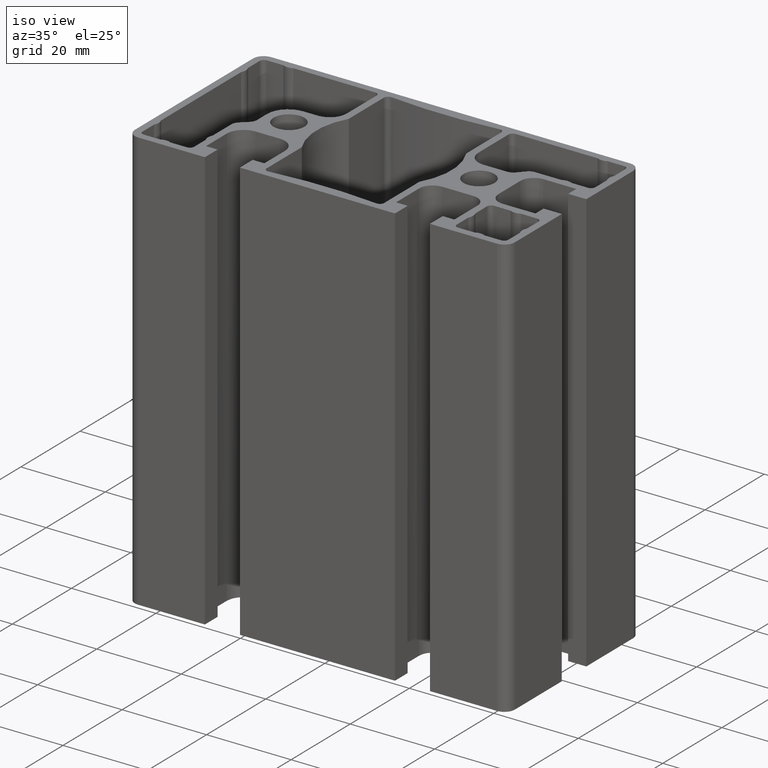
[diagram: clean part render]
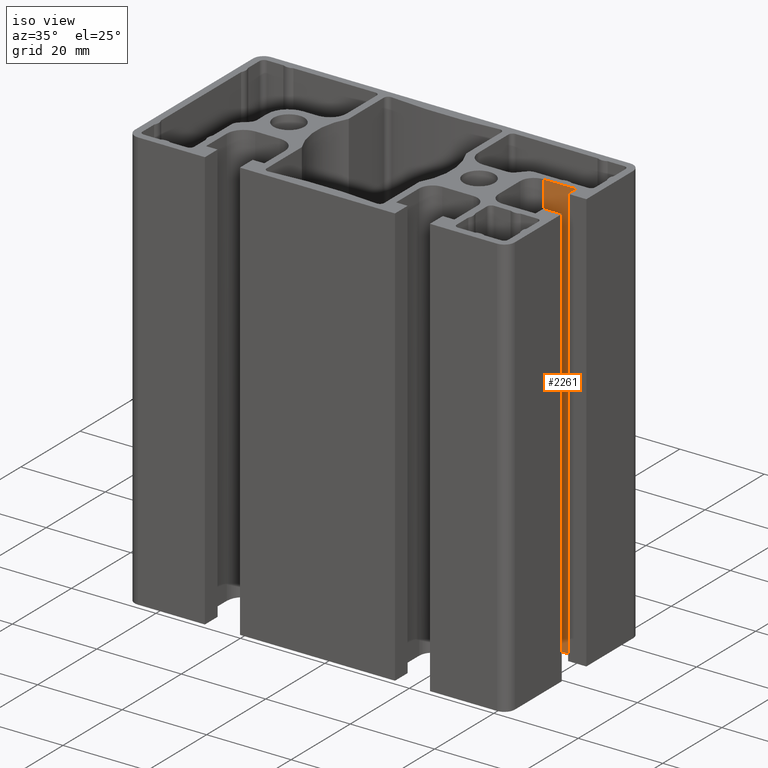
[diagram: same view with one face highlighted and labeled with its STEP entity id]
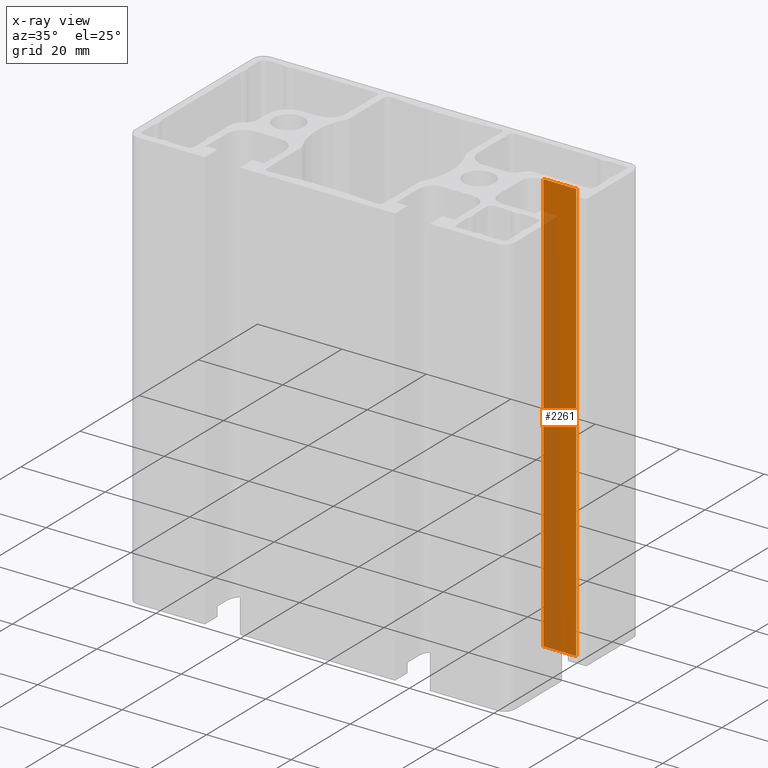
[diagram: x-ray of the same camera — body ghosted, the highlighted face saturated]
A machine part, iso view. The second image highlights one B-rep face of the part: STEP entity #2261.
The next image is the same camera in x-ray: the body ghosted, the highlighted face saturated — about 46% of this face is hidden behind the body in this view.
In plain terms, the highlighted planar face has unit normal (0, 1, 0).
Its self-contained STEP definition (entity closure, byte-faithful):
#75=PLANE('',#2449);
#175=FACE_OUTER_BOUND('',#290,.T.);
#290=EDGE_LOOP('',(#1787,#1788,#1789,#1790));
#510=LINE('',#3675,#744);
#512=LINE('',#3679,#746);
#513=LINE('',#3681,#747);
#514=LINE('',#3682,#748);
#744=VECTOR('',#2994,100.);
#746=VECTOR('',#2998,7.80000000000005);
#747=VECTOR('',#2999,100.);
#748=VECTOR('',#3000,7.80000000000005);
#1073=VERTEX_POINT('',#3672);
#1074=VERTEX_POINT('',#3674);
#1075=VERTEX_POINT('',#3678);
#1076=VERTEX_POINT('',#3680);
#1374=EDGE_CURVE('',#1074,#1073,#510,.T.);
#1376=EDGE_CURVE('',#1075,#1073,#512,.T.);
#1377=EDGE_CURVE('',#1076,#1075,#513,.T.);
#1378=EDGE_CURVE('',#1074,#1076,#514,.T.);
#1787=ORIENTED_EDGE('',*,*,#1376,.F.);
#1788=ORIENTED_EDGE('',*,*,#1377,.F.);
#1789=ORIENTED_EDGE('',*,*,#1378,.F.);
#1790=ORIENTED_EDGE('',*,*,#1374,.T.);
#2261=ADVANCED_FACE('',(#175),#75,.F.);
#2449=AXIS2_PLACEMENT_3D('',#3677,#2996,#2997);
#2994=DIRECTION('',(0.,0.,1.));
#2996=DIRECTION('center_axis',(0.,1.,0.));
#2997=DIRECTION('ref_axis',(-1.,0.,0.));
#2998=DIRECTION('',(1.,0.,0.));
#2999=DIRECTION('',(0.,0.,1.));
#3000=DIRECTION('',(-1.,0.,0.));
#3672=CARTESIAN_POINT('',(40.6999999999998,6.90000000000006,100.));
#3674=CARTESIAN_POINT('',(40.6999999999998,6.90000000000006,0.));
#3675=CARTESIAN_POINT('',(40.6999999999998,6.90000000000006,0.));
#3677=CARTESIAN_POINT('Origin',(40.6999999999998,6.90000000000006,0.));
#3678=CARTESIAN_POINT('',(32.8999999999998,6.90000000000006,100.));
#3679=CARTESIAN_POINT('',(20.3499999999999,6.90000000000006,100.));
#3680=CARTESIAN_POINT('',(32.8999999999998,6.90000000000006,0.));
#3681=CARTESIAN_POINT('',(32.8999999999998,6.90000000000006,0.));
#3682=CARTESIAN_POINT('',(20.3499999999999,6.90000000000006,0.));